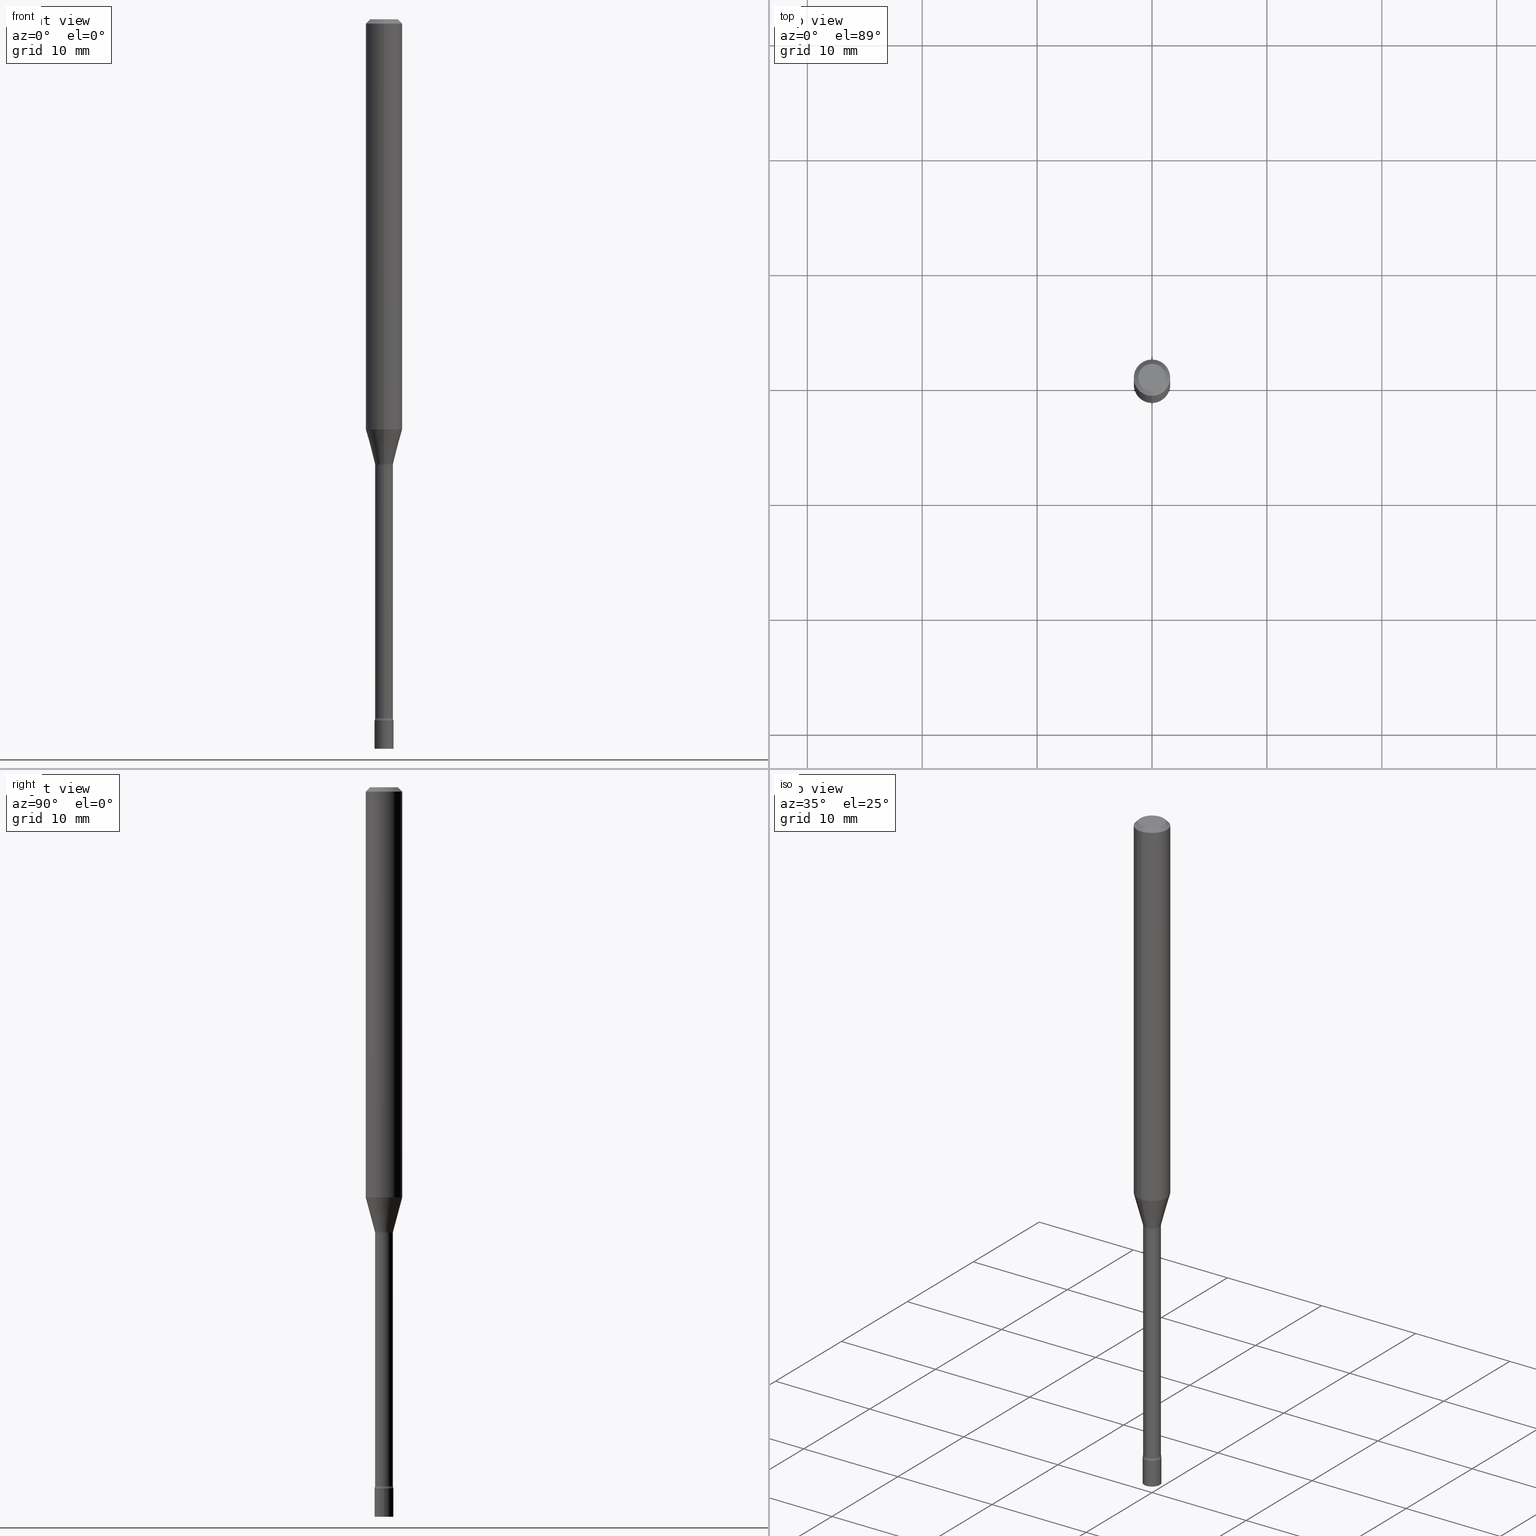
[diagram: canonical four-view strip — front | top / right | iso, engineering-drawing reading convention]
A machine part, canonical four-view strip (front | top / right | iso — engineering-drawing reading convention). The complete STEP part file that produces these views, byte-faithful:
ISO-10303-21;
HEADER;
FILE_DESCRIPTION (( 'STEP AP203' ),
    '1' );
FILE_NAME ('09694.STEP',
    '2024-03-09T00:54:56',
    ( '' ),
    ( '' ),
    'SwSTEP 2.0',
    'SolidWorks 2023',
    '' );
FILE_SCHEMA (( 'CONFIG_CONTROL_DESIGN' ));
ENDSEC;

DATA;
#1 = CYLINDRICAL_SURFACE ( 'NONE', #429, 0.03250000000000000111 ) ;
#2 = CLOSED_SHELL ( 'NONE', ( #404, #222, #432, #103, #30, #485, #6, #465, #80, #73, #48, #367, #166, #520 ) ) ;
#3 = AXIS2_PLACEMENT_3D ( 'NONE', #154, #260, #344 ) ;
#4 = ORIENTED_EDGE ( 'NONE', *, *, #396, .F. ) ;
#5 = VERTEX_POINT ( 'NONE', #299 ) ;
#6 = ADVANCED_FACE ( 'NONE', ( #345 ), #198, .T. ) ;
#7 = DATE_AND_TIME ( #376, #362 ) ;
#8 = ORIENTED_EDGE ( 'NONE', *, *, #357, .T. ) ;
#9 = AXIS2_PLACEMENT_3D ( 'NONE', #35, #69, #232 ) ;
#10 = CC_DESIGN_APPROVAL ( #44, ( #142 ) ) ;
#11 = ORIENTED_EDGE ( 'NONE', *, *, #280, .F. ) ;
#12 = CARTESIAN_POINT ( 'NONE',  ( 2.269462870248623692E-16, 0.03249999999999161199, -2.402000000000000135 ) ) ;
#13 = CARTESIAN_POINT ( 'NONE',  ( 3.236522161387629591E-16, 0.04554999999999466420, -1.526974787463811545 ) ) ;
#14 = ORIENTED_EDGE ( 'NONE', *, *, #170, .T. ) ;
#15 = DIRECTION ( 'NONE',  ( -6.982962677686265922E-15, -1.000000000000000000, 3.483106191921935554E-15 ) ) ;
#16 = AXIS2_PLACEMENT_3D ( 'NONE', #312, #365, #120 ) ;
#17 = VECTOR ( 'NONE', #223, 39.37007874015748143 ) ;
#18 = EDGE_LOOP ( 'NONE', ( #4, #123 ) ) ;
#19 = ORIENTED_EDGE ( 'NONE', *, *, #477, .F. ) ;
#20 = FACE_OUTER_BOUND ( 'NONE', #46, .T. ) ;
#21 = CC_DESIGN_PERSON_AND_ORGANIZATION_ASSIGNMENT ( #422, #29, ( #49 ) ) ;
#22 = DIRECTION ( 'NONE',  ( -6.982962677686265922E-15, -1.000000000000000000, 3.491490356034149509E-15 ) ) ;
#23 = CARTESIAN_POINT ( 'NONE',  ( 2.309263891220913384E-16, 0.03249999999999162587, -2.402000000000000135 ) ) ;
#24 = ADVANCED_FACE ( 'NONE', ( #380 ), #421, .T. ) ;
#25 = FACE_OUTER_BOUND ( 'NONE', #496, .T. ) ;
#26 = AXIS2_PLACEMENT_3D ( 'NONE', #426, #368, #325 ) ;
#27 = AXIS2_PLACEMENT_3D ( 'NONE', #265, #140, #15 ) ;
#28 = CARTESIAN_POINT ( 'NONE',  ( 0.000000000000000000, 0.000000000000000000, 0.000000000000000000 ) ) ;
#29 = PERSON_AND_ORGANIZATION_ROLE ( 'design_owner' ) ;
#30 = ADVANCED_FACE ( 'NONE', ( #462 ), #457, .T. ) ;
#31 = COORDINATED_UNIVERSAL_TIME_OFFSET ( 5, 0, .BEHIND. ) ;
#32 = VECTOR ( 'NONE', #205, 39.37007874015748143 ) ;
#33 = DIRECTION ( 'NONE',  ( -2.445462509514312655E-29, 3.491490356034149509E-15, 1.000000000000000000 ) ) ;
#34 = APPLICATION_CONTEXT ( 'configuration controlled 3d designs of mechanical parts and assemblies' ) ;
#35 = CARTESIAN_POINT ( 'NONE',  ( 5.874000947853379180E-29, -8.386559835194027809E-15, -2.402000000000000135 ) ) ;
#36 = PERSON_AND_ORGANIZATION_ROLE ( 'creator' ) ;
#37 = ORIENTED_EDGE ( 'NONE', *, *, #309, .F. ) ;
#38 = DIRECTION ( 'NONE',  ( -6.982962677686265922E-15, -1.000000000000000000, 0.000000000000000000 ) ) ;
#39 = CARTESIAN_POINT ( 'NONE',  ( 6.113672015462842613E-29, -8.728703347107864943E-15, -2.500000000000000000 ) ) ;
#40 = DATE_AND_TIME ( #121, #216 ) ;
#41 = VERTEX_POINT ( 'NONE', #261 ) ;
#42 = FACE_OUTER_BOUND ( 'NONE', #164, .T. ) ;
#43 = AXIS2_PLACEMENT_3D ( 'NONE', #110, #399, #271 ) ;
#44 = APPROVAL ( #235, 'UNSPECIFIED' ) ;
#45 = APPROVAL_STATUS ( 'not_yet_approved' ) ;
#46 = EDGE_LOOP ( 'NONE', ( #256, #244, #161, #446 ) ) ;
#47 = CARTESIAN_POINT ( 'NONE',  ( 5.855929933387993596E-29, -8.360715962634647749E-15, -2.394604224178627838 ) ) ;
#48 = ADVANCED_FACE ( 'NONE', ( #383 ), #231, .F. ) ;
#49 = PRODUCT ( '09694', '09694', '', ( #116 ) ) ;
#50 = VERTEX_POINT ( 'NONE', #497 ) ;
#51 = ORIENTED_EDGE ( 'NONE', *, *, #440, .T. ) ;
#52 = APPROVAL_ROLE ( '' ) ;
#53 = AXIS2_PLACEMENT_3D ( 'NONE', #246, #516, #486 ) ;
#54 = CC_DESIGN_APPROVAL ( #182, ( #149 ) ) ;
#55 = CARTESIAN_POINT ( 'NONE',  ( 2.207024792658474506E-16, 0.03106111260565866741, -1.523092501787273401 ) ) ;
#56 = EDGE_CURVE ( 'NONE', #410, #62, #390, .T. ) ;
#57 = VERTEX_POINT ( 'NONE', #505 ) ;
#58 = CARTESIAN_POINT ( 'NONE',  ( 3.724665611643138049E-29, -5.317862781338191581E-15, -1.523092501787273401 ) ) ;
#59 = DIRECTION ( 'NONE',  ( -1.000000000000000000, 6.982962677686265922E-15, -4.876176775795935793E-29 ) ) ;
#60 = EDGE_LOOP ( 'NONE', ( #489, #167, #201, #388 ) ) ;
#61 = LINE ( 'NONE', #358, #193 ) ;
#62 = VERTEX_POINT ( 'NONE', #350 ) ;
#63 = ORIENTED_EDGE ( 'NONE', *, *, #351, .F. ) ;
#64 = AXIS2_PLACEMENT_3D ( 'NONE', #12, #264, #106 ) ;
#65 = VECTOR ( 'NONE', #158, 39.37007874015748143 ) ;
#66 = CARTESIAN_POINT ( 'NONE',  ( 3.734159595716336205E-29, -5.331417744337191746E-15, -1.526974787463811323 ) ) ;
#67 = EDGE_CURVE ( 'NONE', #50, #62, #335, .T. ) ;
#68 = CARTESIAN_POINT ( 'NONE',  ( 3.668193764271476392E-31, -5.237235534051234815E-17, -0.01500000000000003067 ) ) ;
#69 = DIRECTION ( 'NONE',  ( -2.445462509514312655E-29, 3.491490356034149509E-15, 1.000000000000000000 ) ) ;
#70 = CARTESIAN_POINT ( 'NONE',  ( 0.000000000000000000, 0.000000000000000000, 0.000000000000000000 ) ) ;
#71 = VECTOR ( 'NONE', #519, 39.37007874015748143 ) ;
#72 = APPLICATION_PROTOCOL_DEFINITION ( 'international standard', 'config_control_design', 1994, #347 ) ;
#73 = ADVANCED_FACE ( 'NONE', ( #342 ), #386, .F. ) ;
#74 = PERSON_AND_ORGANIZATION ( #400, #395 ) ;
#75 = EDGE_LOOP ( 'NONE', ( #249, #8, #263, #175 ) ) ;
#76 = CLOSED_SHELL ( 'NONE', ( #243, #157, #500, #24 ) ) ;
#77 = AXIS2_PLACEMENT_3D ( 'NONE', #304, #112, #115 ) ;
#78 = CC_DESIGN_SECURITY_CLASSIFICATION ( #355, ( #149 ) ) ;
#79 = LINE ( 'NONE', #392, #474 ) ;
#80 = ADVANCED_FACE ( 'NONE', ( #141 ), #354, .T. ) ;
#81 = CARTESIAN_POINT ( 'NONE',  ( -3.180739499685720164E-16, -0.04555000000000533622, -1.526974787463811101 ) ) ;
#82 = CYLINDRICAL_SURFACE ( 'NONE', #185, 0.03055000000000002852 ) ;
#83 = ORIENTED_EDGE ( 'NONE', *, *, #280, .T. ) ;
#84 = ORIENTED_EDGE ( 'NONE', *, *, #451, .F. ) ;
#85 = DIRECTION ( 'NONE',  ( -6.982962677686265922E-15, -1.000000000000000000, 3.491490356034149509E-15 ) ) ;
#86 = EDGE_CURVE ( 'NONE', #408, #453, #303, .T. ) ;
#87 = CIRCLE ( 'NONE', #155, 0.06250000000000000000 ) ;
#88 = DATE_AND_TIME ( #494, #124 ) ;
#89 = ORIENTED_EDGE ( 'NONE', *, *, #197, .T. ) ;
#90 = EDGE_LOOP ( 'NONE', ( #443, #481, #63, #323 ) ) ;
#91 = ORIENTED_EDGE ( 'NONE', *, *, #145, .F. ) ;
#92 = ADVANCED_BREP_SHAPE_REPRESENTATION ( '09694', ( #314, #318, #105 ), #372 ) ;
#93 = DIRECTION ( 'NONE',  ( 1.000000000000000000, -7.105427357601001070E-15, 4.926315618970823189E-29 ) ) ;
#94 = ORIENTED_EDGE ( 'NONE', *, *, #298, .F. ) ;
#95 = AXIS2_PLACEMENT_3D ( 'NONE', #144, #268, #503 ) ;
#96 = TOROIDAL_SURFACE ( 'NONE', #343, 0.04555000000000008348, 0.01500000000000002720 ) ;
#97 = ORIENTED_EDGE ( 'NONE', *, *, #424, .F. ) ;
#98 = ORIENTED_EDGE ( 'NONE', *, *, #56, .T. ) ;
#99 = ORIENTED_EDGE ( 'NONE', *, *, #179, .F. ) ;
#100 = ORIENTED_EDGE ( 'NONE', *, *, #269, .T. ) ;
#101 = DIRECTION ( 'NONE',  ( -6.982962677686265922E-15, -1.000000000000000000, 3.491490356034149115E-15 ) ) ;
#102 = ORIENTED_EDGE ( 'NONE', *, *, #128, .T. ) ;
#103 = ADVANCED_FACE ( 'NONE', ( #20 ), #492, .T. ) ;
#104 = CARTESIAN_POINT ( 'NONE',  ( 3.734169210573929131E-29, -5.331403975313875023E-15, -1.526974787463811323 ) ) ;
#105 = AXIS2_PLACEMENT_3D ( 'NONE', #28, #111, #272 ) ;
#106 = DIRECTION ( 'NONE',  ( -6.982962677686265922E-15, -1.000000000000000000, 3.491490356034149509E-15 ) ) ;
#107 = CARTESIAN_POINT ( 'NONE',  ( 0.000000000000000000, 0.000000000000000000, 0.000000000000000000 ) ) ;
#108 =( NAMED_UNIT ( * ) SI_UNIT ( $, .STERADIAN. ) SOLID_ANGLE_UNIT ( ) );
#109 = EDGE_CURVE ( 'NONE', #375, #171, #148, .T. ) ;
#110 = CARTESIAN_POINT ( 'NONE',  ( 5.874016072456698366E-29, -8.386538175901236044E-15, -2.402000000000000135 ) ) ;
#111 = DIRECTION ( 'NONE',  ( 0.000000000000000000, 0.000000000000000000, 1.000000000000000000 ) ) ;
#112 = DIRECTION ( 'NONE',  ( -2.445462509514312655E-29, 3.491490356034149509E-15, 1.000000000000000000 ) ) ;
#113 = CIRCLE ( 'NONE', #16, 0.03106111260566398607 ) ;
#114 = AXIS2_PLACEMENT_3D ( 'NONE', #287, #407, #490 ) ;
#115 = DIRECTION ( 'NONE',  ( -6.982962677686265922E-15, -1.000000000000000000, 0.000000000000000000 ) ) ;
#116 = MECHANICAL_CONTEXT ( 'NONE', #347, 'mechanical' ) ;
#117 = SECURITY_CLASSIFICATION_LEVEL ( 'unclassified' ) ;
#118 = EDGE_CURVE ( 'NONE', #410, #331, #412, .T. ) ;
#119 = EDGE_CURVE ( 'NONE', #171, #224, #300, .T. ) ;
#120 = DIRECTION ( 'NONE',  ( -6.982962677686265922E-15, -1.000000000000000000, 0.000000000000000000 ) ) ;
#121 = CALENDAR_DATE ( 2024, 8, 3 ) ;
#122 = AXIS2_PLACEMENT_3D ( 'NONE', #452, #93, #257 ) ;
#123 = ORIENTED_EDGE ( 'NONE', *, *, #197, .F. ) ;
#124 = LOCAL_TIME ( 19, 54, 56.00000000000000000, #302 ) ;
#125 = DIRECTION ( 'NONE',  ( 1.000000000000000000, -6.982962677686287221E-15, 0.000000000000000000 ) ) ;
#126 = ORIENTED_EDGE ( 'NONE', *, *, #86, .F. ) ;
#127 = DIRECTION ( 'NONE',  ( -2.445462509514312655E-29, 3.491490356034149509E-15, 1.000000000000000000 ) ) ;
#128 = EDGE_CURVE ( 'NONE', #41, #57, #162, .T. ) ;
#129 = CARTESIAN_POINT ( 'NONE',  ( -4.364351673553916201E-16, -0.06250000000000000000, 2.182181472521343443E-16 ) ) ;
#130 = VERTEX_POINT ( 'NONE', #316 ) ;
#131 = DIRECTION ( 'NONE',  ( -2.445462509514312655E-29, 3.491490356034149509E-15, 1.000000000000000000 ) ) ;
#132 = ORIENTED_EDGE ( 'NONE', *, *, #67, .F. ) ;
#133 = CONICAL_SURFACE ( 'NONE', #423, 0.03106111260566398607, 0.2617993877991497409 ) ;
#134 = ORIENTED_EDGE ( 'NONE', *, *, #262, .F. ) ;
#135 = DIRECTION ( 'NONE',  ( 2.445462509514312655E-29, -3.491490356034149509E-15, -1.000000000000000000 ) ) ;
#136 = DIRECTION ( 'NONE',  ( -2.445462509514312655E-29, 3.491490356034149509E-15, 1.000000000000000000 ) ) ;
#137 = CARTESIAN_POINT ( 'NONE',  ( 3.724665611643138049E-29, -5.317862781338191581E-15, -1.523092501787273401 ) ) ;
#138 = CIRCLE ( 'NONE', #226, 0.03055000000000005975 ) ;
#139 = AXIS2_PLACEMENT_3D ( 'NONE', #359, #339, #349 ) ;
#140 = DIRECTION ( 'NONE',  ( -2.445462509514312655E-29, 3.491490356034149509E-15, 1.000000000000000000 ) ) ;
#141 = FACE_OUTER_BOUND ( 'NONE', #296, .T. ) ;
#142 = PRODUCT_DEFINITION ( 'UNKNOWN', '', #149, #293 ) ;
#143 = FACE_OUTER_BOUND ( 'NONE', #60, .T. ) ;
#144 = CARTESIAN_POINT ( 'NONE',  ( 3.316907271900976096E-16, 0.04749999999999999362, -1.803025332172702533E-16 ) ) ;
#145 = EDGE_CURVE ( 'NONE', #62, #50, #248, .T. ) ;
#146 = CARTESIAN_POINT ( 'NONE',  ( -3.180739499685514567E-16, -0.04555000000000844484, -2.394604224178627394 ) ) ;
#147 = DIRECTION ( 'NONE',  ( 2.438088387897960049E-29, -3.491481338843145188E-15, -1.000000000000000000 ) ) ;
#148 = CIRCLE ( 'NONE', #122, 0.01500000000000002720 ) ;
#149 = PRODUCT_DEFINITION_FORMATION_WITH_SPECIFIED_SOURCE ( 'ANY', '', #49, .NOT_KNOWN. ) ;
#150 = DIRECTION ( 'NONE',  ( -6.982962677686265922E-15, -1.000000000000000000, 3.491490356034149509E-15 ) ) ;
#151 = CARTESIAN_POINT ( 'NONE',  ( 3.734169210573929131E-29, -5.331403975313875023E-15, -1.526974787463811323 ) ) ;
#152 = EDGE_CURVE ( 'NONE', #288, #284, #472, .T. ) ;
#153 = CARTESIAN_POINT ( 'NONE',  ( 3.734159595716336205E-29, -5.331417744337191746E-15, -1.526974787463811323 ) ) ;
#154 = CARTESIAN_POINT ( 'NONE',  ( 5.874016072456698366E-29, -8.386538175901236044E-15, -2.402000000000000135 ) ) ;
#155 = AXIS2_PLACEMENT_3D ( 'NONE', #508, #425, #289 ) ;
#156 = CC_DESIGN_PERSON_AND_ORGANIZATION_ASSIGNMENT ( #74, #238, ( #355 ) ) ;
#157 = ADVANCED_FACE ( 'NONE', ( #353 ), #469, .T. ) ;
#158 = DIRECTION ( 'NONE',  ( 4.937700262164548042E-15, 0.7071067811865451302, -0.7071067811865499042 ) ) ;
#159 = DIRECTION ( 'NONE',  ( -2.445468806185136597E-29, 3.491481338843145583E-15, 1.000000000000000000 ) ) ;
#160 = LINE ( 'NONE', #245, #65 ) ;
#161 = ORIENTED_EDGE ( 'NONE', *, *, #152, .T. ) ;
#162 = LINE ( 'NONE', #512, #71 ) ;
#163 = AXIS2_PLACEMENT_3D ( 'NONE', #225, #337, #507 ) ;
#164 = EDGE_LOOP ( 'NONE', ( #11, #100, #188, #37 ) ) ;
#165 = FACE_OUTER_BOUND ( 'NONE', #409, .T. ) ;
#166 = ADVANCED_FACE ( 'NONE', ( #25 ), #320, .T. ) ;
#167 = ORIENTED_EDGE ( 'NONE', *, *, #196, .F. ) ;
#168 = CARTESIAN_POINT ( 'NONE',  ( -0.03250000000000000111, 2.309263891220325683E-16, -1.598653904332844407E-30 ) ) ;
#169 = ORIENTED_EDGE ( 'NONE', *, *, #357, .F. ) ;
#170 = EDGE_CURVE ( 'NONE', #5, #428, #282, .T. ) ;
#171 = VERTEX_POINT ( 'NONE', #23 ) ;
#172 = ORIENTED_EDGE ( 'NONE', *, *, #459, .T. ) ;
#173 = CARTESIAN_POINT ( 'NONE',  ( -3.773273898774340269E-16, -0.04749999999999999362, 1.369323093003258023E-16 ) ) ;
#174 = APPROVAL_DATE_TIME ( #7, #466 ) ;
#175 = ORIENTED_EDGE ( 'NONE', *, *, #269, .F. ) ;
#176 = PRODUCT_RELATED_PRODUCT_CATEGORY ( 'detail', '', ( #49 ) ) ;
#177 = CIRCLE ( 'NONE', #114, 0.03250000000000000111 ) ;
#178 = DIRECTION ( 'NONE',  ( 6.982962677686265922E-15, 1.000000000000000000, -3.483106191921935554E-15 ) ) ;
#179 = EDGE_CURVE ( 'NONE', #441, #57, #371, .T. ) ;
#180 = ORIENTED_EDGE ( 'NONE', *, *, #196, .T. ) ;
#181 = CARTESIAN_POINT ( 'NONE',  ( 3.668193764271476392E-31, -5.237235534051234815E-17, -0.01500000000000003067 ) ) ;
#182 = APPROVAL ( #45, 'UNSPECIFIED' ) ;
#183 = DIRECTION ( 'NONE',  ( -2.445462509514312655E-29, 3.491490356034149509E-15, 1.000000000000000000 ) ) ;
#184 = EDGE_LOOP ( 'NONE', ( #377, #336 ) ) ;
#185 = AXIS2_PLACEMENT_3D ( 'NONE', #70, #33, #150 ) ;
#186 = AXIS2_PLACEMENT_3D ( 'NONE', #104, #387, #22 ) ;
#187 = DIRECTION ( 'NONE',  ( -6.982962677686267499E-15, -1.000000000000000000, 0.000000000000000000 ) ) ;
#188 = ORIENTED_EDGE ( 'NONE', *, *, #451, .T. ) ;
#189 = DIRECTION ( 'NONE',  ( 7.105427357600997914E-15, 1.000000000000000000, 0.000000000000000000 ) ) ;
#190 = CALENDAR_DATE ( 2024, 8, 3 ) ;
#191 = FACE_OUTER_BOUND ( 'NONE', #214, .T. ) ;
#192 = VECTOR ( 'NONE', #239, 39.37007874015748143 ) ;
#193 = VECTOR ( 'NONE', #348, 39.37007874015748143 ) ;
#194 = DIRECTION ( 'NONE',  ( -6.982962677686265133E-15, -1.000000000000000000, 0.000000000000000000 ) ) ;
#195 =( NAMED_UNIT ( * ) PLANE_ANGLE_UNIT ( ) SI_UNIT ( $, .RADIAN. ) );
#196 = EDGE_CURVE ( 'NONE', #130, #375, #138, .T. ) ;
#197 = EDGE_CURVE ( 'NONE', #403, #41, #483, .T. ) ;
#198 = CONICAL_SURFACE ( 'NONE', #455, 0.03106111260566398607, 0.2617993877991497409 ) ;
#199 = CARTESIAN_POINT ( 'NONE',  ( 7.070683774541914860E-46, -1.009511456967021784E-31, -2.891348261129631711E-17 ) ) ;
#200 = CARTESIAN_POINT ( 'NONE',  ( -2.269462870247450261E-16, -0.03250000000000839717, -2.402000000000000135 ) ) ;
#201 = ORIENTED_EDGE ( 'NONE', *, *, #298, .T. ) ;
#202 = CARTESIAN_POINT ( 'NONE',  ( 3.724665611643138049E-29, -5.317862781338191581E-15, -1.523092501787273401 ) ) ;
#203 = DIRECTION ( 'NONE',  ( -6.982962677686265922E-15, -1.000000000000000000, 0.000000000000000000 ) ) ;
#204 = CALENDAR_DATE ( 2024, 8, 3 ) ;
#205 = DIRECTION ( 'NONE',  ( -2.445468806185136877E-29, 3.491481338843145188E-15, 1.000000000000000000 ) ) ;
#206 = AXIS2_PLACEMENT_3D ( 'NONE', #153, #394, #194 ) ;
#207 = ORIENTED_EDGE ( 'NONE', *, *, #119, .T. ) ;
#208 = CIRCLE ( 'NONE', #484, 0.03106111260566398607 ) ;
#209 = EDGE_LOOP ( 'NONE', ( #253, #83, #401, #84 ) ) ;
#210 = FACE_OUTER_BOUND ( 'NONE', #420, .T. ) ;
#211 = COORDINATED_UNIVERSAL_TIME_OFFSET ( 5, 0, .BEHIND. ) ;
#212 = EDGE_LOOP ( 'NONE', ( #219, #218 ) ) ;
#213 = SHAPE_DEFINITION_REPRESENTATION ( #215, #92 ) ;
#214 = EDGE_LOOP ( 'NONE', ( #180, #338, #132, #221 ) ) ;
#215 = PRODUCT_DEFINITION_SHAPE ( 'NONE', 'NONE',  #142 ) ;
#216 = LOCAL_TIME ( 19, 54, 56.00000000000000000, #328 ) ;
#217 = CIRCLE ( 'NONE', #3, 0.03250000000000000111 ) ;
#218 = ORIENTED_EDGE ( 'NONE', *, *, #179, .T. ) ;
#219 = ORIENTED_EDGE ( 'NONE', *, *, #351, .T. ) ;
#220 = DIRECTION ( 'NONE',  ( -6.982962677686265133E-15, -1.000000000000000000, 0.000000000000000000 ) ) ;
#221 = ORIENTED_EDGE ( 'NONE', *, *, #277, .F. ) ;
#222 = ADVANCED_FACE ( 'NONE', ( #191 ), #82, .T. ) ;
#223 = DIRECTION ( 'NONE',  ( -2.445462509514312655E-29, 3.491490356034149509E-15, 1.000000000000000000 ) ) ;
#224 = VERTEX_POINT ( 'NONE', #200 ) ;
#225 = CARTESIAN_POINT ( 'NONE',  ( 0.000000000000000000, 0.000000000000000000, 0.000000000000000000 ) ) ;
#226 = AXIS2_PLACEMENT_3D ( 'NONE', #427, #439, #203 ) ;
#227 = CIRCLE ( 'NONE', #514, 0.01500000000000002720 ) ;
#228 = DIRECTION ( 'NONE',  ( -6.982962677686265922E-15, -1.000000000000000000, 4.370956789862821150E-15 ) ) ;
#229 =( LENGTH_UNIT ( ) NAMED_UNIT ( * ) SI_UNIT ( $, .METRE. ) );
#230 = CARTESIAN_POINT ( 'NONE',  ( -0.03250000000000000111, -8.326694372382518911E-15, -2.500000000000000000 ) ) ;
#231 = PLANE ( 'NONE',  #64 ) ;
#232 = DIRECTION ( 'NONE',  ( -6.982962677686265922E-15, -1.000000000000000000, 0.000000000000000000 ) ) ;
#233 = AXIS2_PLACEMENT_3D ( 'NONE', #13, #419, #189 ) ;
#234 = CIRCLE ( 'NONE', #361, 0.01500000000000002720 ) ;
#235 = APPROVAL_STATUS ( 'not_yet_approved' ) ;
#236 = CARTESIAN_POINT ( 'NONE',  ( 4.440892098500972274E-16, 0.06249999999999995143, -0.01500000000000024751 ) ) ;
#237 = EDGE_CURVE ( 'NONE', #408, #410, #113, .T. ) ;
#238 = PERSON_AND_ORGANIZATION_ROLE ( 'classification_officer' ) ;
#239 = DIRECTION ( 'NONE',  ( 1.839019923739596765E-15, 0.2588190451025244587, 0.9659258262890673130 ) ) ;
#240 = LOCAL_TIME ( 19, 54, 56.00000000000000000, #31 ) ;
#241 = COORDINATED_UNIVERSAL_TIME_OFFSET ( 5, 0, .BEHIND. ) ;
#242 = CARTESIAN_POINT ( 'NONE',  ( 0.000000000000000000, 0.000000000000000000, 0.000000000000000000 ) ) ;
#243 = ADVANCED_FACE ( 'NONE', ( #467 ), #281, .T. ) ;
#244 = ORIENTED_EDGE ( 'NONE', *, *, #433, .T. ) ;
#245 = CARTESIAN_POINT ( 'NONE',  ( 4.364351673553919652E-16, 0.06249999999999995143, -0.01500000000000024751 ) ) ;
#246 = CARTESIAN_POINT ( 'NONE',  ( 7.070683774541914860E-46, -1.009511456967021784E-31, -2.891348261129631711E-17 ) ) ;
#247 = ORIENTED_EDGE ( 'NONE', *, *, #277, .T. ) ;
#248 = CIRCLE ( 'NONE', #206, 0.03055000000000000077 ) ;
#249 = ORIENTED_EDGE ( 'NONE', *, *, #118, .F. ) ;
#250 = AXIS2_PLACEMENT_3D ( 'NONE', #107, #270, #436 ) ;
#251 = DIRECTION ( 'NONE',  ( -6.982962677686263555E-15, -1.000000000000000000, 0.000000000000000000 ) ) ;
#252 = APPROVAL_STATUS ( 'not_yet_approved' ) ;
#253 = ORIENTED_EDGE ( 'NONE', *, *, #424, .T. ) ;
#254 = EDGE_LOOP ( 'NONE', ( #450, #308, #207, #94 ) ) ;
#255 = PERSON_AND_ORGANIZATION ( #400, #395 ) ;
#256 = ORIENTED_EDGE ( 'NONE', *, *, #440, .F. ) ;
#257 = DIRECTION ( 'NONE',  ( 7.105427357601001859E-15, 1.000000000000000000, 0.000000000000000000 ) ) ;
#258 = AXIS2_PLACEMENT_3D ( 'NONE', #68, #135, #295 ) ;
#259 = TOROIDAL_SURFACE ( 'NONE', #186, 0.04555000000000000021, 0.01500000000000002373 ) ;
#260 = DIRECTION ( 'NONE',  ( -2.445468806185136597E-29, 3.491481338843145583E-15, 1.000000000000000000 ) ) ;
#261 = CARTESIAN_POINT ( 'NONE',  ( 0.03250000000000000111, -8.955649634132668295E-15, -2.500000000000000000 ) ) ;
#262 = EDGE_CURVE ( 'NONE', #375, #62, #79, .T. ) ;
#263 = ORIENTED_EDGE ( 'NONE', *, *, #86, .T. ) ;
#264 = DIRECTION ( 'NONE',  ( -2.445462509514312375E-29, 3.491490356034149509E-15, 1.000000000000000000 ) ) ;
#265 = CARTESIAN_POINT ( 'NONE',  ( 3.668193764271476392E-31, -5.237235534051234815E-17, -0.01500000000000003067 ) ) ;
#266 = ORIENTED_EDGE ( 'NONE', *, *, #145, .T. ) ;
#267 = AXIS2_PLACEMENT_3D ( 'NONE', #47, #279, #324 ) ;
#268 = DIRECTION ( 'NONE',  ( 2.445462509514312375E-29, -3.491490356034149509E-15, -1.000000000000000000 ) ) ;
#269 = EDGE_CURVE ( 'NONE', #331, #453, #327, .T. ) ;
#270 = DIRECTION ( 'NONE',  ( -2.445468806185136597E-29, 3.491481338843145583E-15, 1.000000000000000000 ) ) ;
#271 = DIRECTION ( 'NONE',  ( 1.000000000000000000, -6.982962677686258033E-15, 0.000000000000000000 ) ) ;
#272 = DIRECTION ( 'NONE',  ( 1.000000000000000000, 0.000000000000000000, 0.000000000000000000 ) ) ;
#273 = DIRECTION ( 'NONE',  ( -2.445462509514312655E-29, 3.491490356034149509E-15, 1.000000000000000000 ) ) ;
#274 = CC_DESIGN_PERSON_AND_ORGANIZATION_ASSIGNMENT ( #366, #36, ( #142 ) ) ;
#275 = AXIS2_PLACEMENT_3D ( 'NONE', #509, #402, #389 ) ;
#276 = VECTOR ( 'NONE', #491, 39.37007874015748143 ) ;
#277 = EDGE_CURVE ( 'NONE', #130, #50, #61, .T. ) ;
#278 = DATE_AND_TIME ( #204, #311 ) ;
#279 = DIRECTION ( 'NONE',  ( -2.445462509514312655E-29, 3.491490356034149509E-15, 1.000000000000000000 ) ) ;
#280 = EDGE_CURVE ( 'NONE', #331, #284, #341, .T. ) ;
#281 = CYLINDRICAL_SURFACE ( 'NONE', #250, 0.03250000000000000111 ) ;
#282 = CIRCLE ( 'NONE', #53, 0.04749999999999999362 ) ;
#283 = PERSON_AND_ORGANIZATION_ROLE ( 'creator' ) ;
#284 = VERTEX_POINT ( 'NONE', #236 ) ;
#285 = CYLINDRICAL_SURFACE ( 'NONE', #391, 0.06250000000000000000 ) ;
#286 = ORIENTED_EDGE ( 'NONE', *, *, #237, .F. ) ;
#287 = CARTESIAN_POINT ( 'NONE',  ( 5.874000947853379180E-29, -8.386559835194027809E-15, -2.402000000000000135 ) ) ;
#288 = VERTEX_POINT ( 'NONE', #382 ) ;
#289 = DIRECTION ( 'NONE',  ( -6.982962677686265922E-15, -1.000000000000000000, 4.370956789862821150E-15 ) ) ;
#290 = VECTOR ( 'NONE', #447, 39.37007874015748143 ) ;
#291 = DIRECTION ( 'NONE',  ( -1.000000000000000000, 6.982962677686265922E-15, -4.883557194083112340E-29 ) ) ;
#292 = EDGE_LOOP ( 'NONE', ( #169, #98, #266, #19 ) ) ;
#293 = DESIGN_CONTEXT ( 'detailed design', #34, 'design' ) ;
#294 = ORIENTED_EDGE ( 'NONE', *, *, #170, .F. ) ;
#295 = DIRECTION ( 'NONE',  ( 6.982962677686265922E-15, 1.000000000000000000, -3.483106191921935554E-15 ) ) ;
#296 = EDGE_LOOP ( 'NONE', ( #305, #294, #172, #417 ) ) ;
#297 = DIRECTION ( 'NONE',  ( -2.445462509514312655E-29, 3.491490356034149509E-15, 1.000000000000000000 ) ) ;
#298 = EDGE_CURVE ( 'NONE', #130, #224, #227, .T. ) ;
#299 = CARTESIAN_POINT ( 'NONE',  ( 3.840629472727447874E-16, 0.04749999999999999362, -1.947592745229183872E-16 ) ) ;
#300 = CIRCLE ( 'NONE', #9, 0.03250000000000000111 ) ;
#301 = AXIS2_PLACEMENT_3D ( 'NONE', #151, #313, #476 ) ;
#302 = COORDINATED_UNIVERSAL_TIME_OFFSET ( 5, 0, .BEHIND. ) ;
#303 = LINE ( 'NONE', #306, #405 ) ;
#304 = CARTESIAN_POINT ( 'NONE',  ( 5.855914855353441094E-29, -8.360737555238315567E-15, -2.394604224178627838 ) ) ;
#305 = ORIENTED_EDGE ( 'NONE', *, *, #433, .F. ) ;
#306 = CARTESIAN_POINT ( 'NONE',  ( -2.168985900527247677E-16, -0.03106111260566930474, -1.523092501787273401 ) ) ;
#307 = ORIENTED_EDGE ( 'NONE', *, *, #118, .T. ) ;
#308 = ORIENTED_EDGE ( 'NONE', *, *, #109, .T. ) ;
#309 = EDGE_CURVE ( 'NONE', #284, #288, #317, .T. ) ;
#310 = AXIS2_PLACEMENT_3D ( 'NONE', #242, #356, #479 ) ;
#311 = LOCAL_TIME ( 19, 54, 56.00000000000000000, #241 ) ;
#312 = CARTESIAN_POINT ( 'NONE',  ( 3.724665611643138049E-29, -5.317862781338191581E-15, -1.523092501787273401 ) ) ;
#313 = DIRECTION ( 'NONE',  ( -2.445462509514312655E-29, 3.491490356034149509E-15, 1.000000000000000000 ) ) ;
#314 = MANIFOLD_SOLID_BREP ( 'Body-Move/Copy2[1]', #76 ) ;
#315 = DIMENSIONAL_EXPONENTS ( 1.000000000000000000, 0.000000000000000000, 0.000000000000000000, 0.000000000000000000, 0.000000000000000000, 0.000000000000000000, 0.000000000000000000 ) ;
#316 = CARTESIAN_POINT ( 'NONE',  ( -2.133295098032572737E-16, -0.03055000000000842111, -2.394604224178627838 ) ) ;
#317 = CIRCLE ( 'NONE', #27, 0.06250000000000000000 ) ;
#318 = MANIFOLD_SOLID_BREP ( 'Body-Move/Copy2[2]', #2 ) ;
#319 = LINE ( 'NONE', #168, #32 ) ;
#320 = CYLINDRICAL_SURFACE ( 'NONE', #310, 0.03055000000000002852 ) ;
#321 = CC_DESIGN_DATE_AND_TIME_ASSIGNMENT ( #88, #449, ( #355 ) ) ;
#322 = APPROVAL_ROLE ( '' ) ;
#323 = ORIENTED_EDGE ( 'NONE', *, *, #128, .F. ) ;
#324 = DIRECTION ( 'NONE',  ( -6.982962677686265922E-15, -1.000000000000000000, 3.491490356034149115E-15 ) ) ;
#325 = DIRECTION ( 'NONE',  ( -6.982962677686265922E-15, -1.000000000000000000, 3.483106191921935554E-15 ) ) ;
#326 = AXIS2_PLACEMENT_3D ( 'NONE', #458, #147, #59 ) ;
#327 = CIRCLE ( 'NONE', #511, 0.06250000000000000000 ) ;
#328 = COORDINATED_UNIVERSAL_TIME_OFFSET ( 5, 0, .BEHIND. ) ;
#329 = DIRECTION ( 'NONE',  ( 1.000000000000000000, -6.982962677686265922E-15, 4.876176775795935232E-29 ) ) ;
#330 = APPROVAL_DATE_TIME ( #40, #182 ) ;
#331 = VERTEX_POINT ( 'NONE', #473 ) ;
#332 = FACE_OUTER_BOUND ( 'NONE', #381, .T. ) ;
#333 = PERSON_AND_ORGANIZATION_ROLE ( 'design_supplier' ) ;
#334 = CARTESIAN_POINT ( 'NONE',  ( -4.287811248607203282E-16, -0.06250000000000005551, -0.01499999999999981209 ) ) ;
#335 = CIRCLE ( 'NONE', #444, 0.03055000000000000077 ) ;
#336 = ORIENTED_EDGE ( 'NONE', *, *, #119, .F. ) ;
#337 = DIRECTION ( 'NONE',  ( -2.445462509514312655E-29, 3.491490356034149509E-15, 1.000000000000000000 ) ) ;
#338 = ORIENTED_EDGE ( 'NONE', *, *, #262, .T. ) ;
#339 = DIRECTION ( 'NONE',  ( -2.445468806185136597E-29, 3.491481338843145583E-15, 1.000000000000000000 ) ) ;
#340 = DIRECTION ( 'NONE',  ( 2.445462509514312655E-29, -3.491490356034149509E-15, -1.000000000000000000 ) ) ;
#341 = LINE ( 'NONE', #506, #17 ) ;
#342 = FACE_OUTER_BOUND ( 'NONE', #415, .T. ) ;
#343 = AXIS2_PLACEMENT_3D ( 'NONE', #460, #273, #101 ) ;
#344 = DIRECTION ( 'NONE',  ( 1.000000000000000000, -6.982962677686258033E-15, 0.000000000000000000 ) ) ;
#345 = FACE_OUTER_BOUND ( 'NONE', #75, .T. ) ;
#346 = CC_DESIGN_PERSON_AND_ORGANIZATION_ASSIGNMENT ( #406, #333, ( #149 ) ) ;
#347 = APPLICATION_CONTEXT ( 'configuration controlled 3d designs of mechanical parts and assemblies' ) ;
#348 = DIRECTION ( 'NONE',  ( -2.445462509514312655E-29, 3.491490356034149509E-15, 1.000000000000000000 ) ) ;
#349 = DIRECTION ( 'NONE',  ( 1.000000000000000000, -6.982962677686287221E-15, 0.000000000000000000 ) ) ;
#350 = CARTESIAN_POINT ( 'NONE',  ( 2.170708057747693824E-16, 0.03054999999999466823, -1.526974787463811323 ) ) ;
#351 = EDGE_CURVE ( 'NONE', #57, #441, #217, .T. ) ;
#352 = CARTESIAN_POINT ( 'NONE',  ( -2.168985900527247677E-16, -0.03106111260566930474, -1.523092501787273401 ) ) ;
#353 = FACE_OUTER_BOUND ( 'NONE', #212, .T. ) ;
#354 = CONICAL_SURFACE ( 'NONE', #435, 0.06250000000000000000, 0.7853981633974483900 ) ;
#355 = SECURITY_CLASSIFICATION ( '', '', #117 ) ;
#356 = DIRECTION ( 'NONE',  ( -2.445462509514312655E-29, 3.491490356034149509E-15, 1.000000000000000000 ) ) ;
#357 = EDGE_CURVE ( 'NONE', #410, #408, #208, .T. ) ;
#358 = CARTESIAN_POINT ( 'NONE',  ( -2.133295098033156247E-16, -0.03055000000000002852, 1.066650303768433640E-16 ) ) ;
#359 = CARTESIAN_POINT ( 'NONE',  ( 6.113672015462842613E-29, -8.728703347107864943E-15, -2.500000000000000000 ) ) ;
#360 = DATE_AND_TIME ( #190, #240 ) ;
#361 = AXIS2_PLACEMENT_3D ( 'NONE', #81, #291, #251 ) ;
#362 = LOCAL_TIME ( 19, 54, 56.00000000000000000, #211 ) ;
#363 = CARTESIAN_POINT ( 'NONE',  ( -0.03250000000000000111, -8.326694372382518911E-15, -2.402000000000000135 ) ) ;
#364 = CC_DESIGN_PERSON_AND_ORGANIZATION_ASSIGNMENT ( #488, #283, ( #149 ) ) ;
#365 = DIRECTION ( 'NONE',  ( -2.445462509514312655E-29, 3.491490356034149509E-15, 1.000000000000000000 ) ) ;
#366 = PERSON_AND_ORGANIZATION ( #400, #395 ) ;
#367 = ADVANCED_FACE ( 'NONE', ( #143 ), #96, .F. ) ;
#368 = DIRECTION ( 'NONE',  ( -2.445462509514312655E-29, 3.491490356034149509E-15, 1.000000000000000000 ) ) ;
#369 = ORIENTED_EDGE ( 'NONE', *, *, #477, .T. ) ;
#370 = FACE_OUTER_BOUND ( 'NONE', #254, .T. ) ;
#371 = CIRCLE ( 'NONE', #43, 0.03250000000000000111 ) ;
#372 =( GEOMETRIC_REPRESENTATION_CONTEXT ( 3 ) GLOBAL_UNCERTAINTY_ASSIGNED_CONTEXT ( ( #498 ) ) GLOBAL_UNIT_ASSIGNED_CONTEXT ( ( #463, #195, #108 ) ) REPRESENTATION_CONTEXT ( 'NONE', 'WORKASPACE' ) );
#373 = DATE_TIME_ROLE ( 'creation_date' ) ;
#374 = ORIENTED_EDGE ( 'NONE', *, *, #56, .F. ) ;
#375 = VERTEX_POINT ( 'NONE', #470 ) ;
#376 = CALENDAR_DATE ( 2024, 8, 3 ) ;
#377 = ORIENTED_EDGE ( 'NONE', *, *, #518, .F. ) ;
#378 = DIRECTION ( 'NONE',  ( -6.982962677686265922E-15, -1.000000000000000000, 0.000000000000000000 ) ) ;
#379 = ORIENTED_EDGE ( 'NONE', *, *, #237, .T. ) ;
#380 = FACE_OUTER_BOUND ( 'NONE', #18, .T. ) ;
#381 = EDGE_LOOP ( 'NONE', ( #442, #89, #102, #99 ) ) ;
#382 = CARTESIAN_POINT ( 'NONE',  ( -4.364351673553912750E-16, -0.06250000000000005551, -0.01499999999999981209 ) ) ;
#383 = FACE_OUTER_BOUND ( 'NONE', #184, .T. ) ;
#384 = CIRCLE ( 'NONE', #456, 0.04749999999999999362 ) ;
#385 = EDGE_CURVE ( 'NONE', #375, #130, #445, .T. ) ;
#386 = PLANE ( 'NONE',  #95 ) ;
#387 = DIRECTION ( 'NONE',  ( -2.445462509514312655E-29, 3.491490356034149509E-15, 1.000000000000000000 ) ) ;
#388 = ORIENTED_EDGE ( 'NONE', *, *, #518, .T. ) ;
#389 = DIRECTION ( 'NONE',  ( 1.000000000000000000, -6.982962677686265922E-15, 4.876176775795935793E-29 ) ) ;
#390 = CIRCLE ( 'NONE', #233, 0.01500000000000002720 ) ;
#391 = AXIS2_PLACEMENT_3D ( 'NONE', #438, #127, #85 ) ;
#392 = CARTESIAN_POINT ( 'NONE',  ( 2.170708057747107848E-16, 0.03055000000000002852, -1.066650303768433640E-16 ) ) ;
#393 = APPROVAL_ROLE ( '' ) ;
#394 = DIRECTION ( 'NONE',  ( -2.445462509514312655E-29, 3.491490356034149509E-15, 1.000000000000000000 ) ) ;
#395 = ORGANIZATION ( 'UNSPECIFIED', 'UNSPECIFIED', '' ) ;
#396 = EDGE_CURVE ( 'NONE', #41, #403, #510, .T. ) ;
#397 = PERSON_AND_ORGANIZATION ( #400, #395 ) ;
#398 = LINE ( 'NONE', #129, #290 ) ;
#399 = DIRECTION ( 'NONE',  ( -2.445468806185136597E-29, 3.491481338843145583E-15, 1.000000000000000000 ) ) ;
#400 = PERSON ( 'UNSPECIFIED', 'UNSPECIFIED', 'UNSPECIFIED', ('UNSPECIFIED'), ('UNSPECIFIED'), ('UNSPECIFIED') ) ;
#401 = ORIENTED_EDGE ( 'NONE', *, *, #152, .F. ) ;
#402 = DIRECTION ( 'NONE',  ( -2.438088387897960049E-29, 3.491481338843145188E-15, 1.000000000000000000 ) ) ;
#403 = VERTEX_POINT ( 'NONE', #230 ) ;
#404 = ADVANCED_FACE ( 'NONE', ( #480 ), #259, .F. ) ;
#405 = VECTOR ( 'NONE', #461, 39.37007874015748854 ) ;
#406 = PERSON_AND_ORGANIZATION ( #400, #395 ) ;
#407 = DIRECTION ( 'NONE',  ( -2.445462509514312655E-29, 3.491490356034149509E-15, 1.000000000000000000 ) ) ;
#408 = VERTEX_POINT ( 'NONE', #352 ) ;
#409 = EDGE_LOOP ( 'NONE', ( #379, #307, #97, #126 ) ) ;
#410 = VERTEX_POINT ( 'NONE', #430 ) ;
#411 = APPROVAL_PERSON_ORGANIZATION ( #255, #466, #52 ) ;
#412 = LINE ( 'NONE', #55, #192 ) ;
#413 = ORIENTED_EDGE ( 'NONE', *, *, #67, .T. ) ;
#414 = DIRECTION ( 'NONE',  ( -6.982962677686265922E-15, -1.000000000000000000, 0.000000000000000000 ) ) ;
#415 = EDGE_LOOP ( 'NONE', ( #14, #51 ) ) ;
#416 = ORIENTED_EDGE ( 'NONE', *, *, #385, .T. ) ;
#417 = ORIENTED_EDGE ( 'NONE', *, *, #309, .T. ) ;
#418 = CARTESIAN_POINT ( 'NONE',  ( 3.437735765853609990E-29, -4.908200893030823515E-15, -1.405760976698174902 ) ) ;
#419 = DIRECTION ( 'NONE',  ( 1.000000000000000000, -7.105427357601001070E-15, 4.926315618970823189E-29 ) ) ;
#420 = EDGE_LOOP ( 'NONE', ( #374, #286, #369, #413 ) ) ;
#421 = PLANE ( 'NONE',  #326 ) ;
#422 = PERSON_AND_ORGANIZATION ( #400, #395 ) ;
#423 = AXIS2_PLACEMENT_3D ( 'NONE', #202, #487, #38 ) ;
#424 = EDGE_CURVE ( 'NONE', #453, #331, #87, .T. ) ;
#425 = DIRECTION ( 'NONE',  ( -2.445462509514312655E-29, 3.491490356034149509E-15, 1.000000000000000000 ) ) ;
#426 = CARTESIAN_POINT ( 'NONE',  ( 3.668193764271476392E-31, -5.237235534051234815E-17, -0.01500000000000003067 ) ) ;
#427 = CARTESIAN_POINT ( 'NONE',  ( 5.855914855353441094E-29, -8.360737555238315567E-15, -2.394604224178627838 ) ) ;
#428 = VERTEX_POINT ( 'NONE', #173 ) ;
#429 = AXIS2_PLACEMENT_3D ( 'NONE', #478, #434, #329 ) ;
#430 = CARTESIAN_POINT ( 'NONE',  ( 3.323958445579722897E-16, 0.03106111260565866394, -1.523092501787273401 ) ) ;
#431 = PERSON_AND_ORGANIZATION ( #400, #395 ) ;
#432 = ADVANCED_FACE ( 'NONE', ( #370 ), #502, .F. ) ;
#433 = EDGE_CURVE ( 'NONE', #428, #288, #517, .T. ) ;
#434 = DIRECTION ( 'NONE',  ( -2.445468806185136597E-29, 3.491481338843145583E-15, 1.000000000000000000 ) ) ;
#435 = AXIS2_PLACEMENT_3D ( 'NONE', #181, #340, #178 ) ;
#436 = DIRECTION ( 'NONE',  ( 1.000000000000000000, -6.982962677686265922E-15, 4.876176775795935232E-29 ) ) ;
#437 = APPROVAL_PERSON_ORGANIZATION ( #397, #182, #322 ) ;
#438 = CARTESIAN_POINT ( 'NONE',  ( 0.000000000000000000, 0.000000000000000000, 0.000000000000000000 ) ) ;
#439 = DIRECTION ( 'NONE',  ( -2.445462509514312655E-29, 3.491490356034149509E-15, 1.000000000000000000 ) ) ;
#440 = EDGE_CURVE ( 'NONE', #428, #5, #384, .T. ) ;
#441 = VERTEX_POINT ( 'NONE', #363 ) ;
#442 = ORIENTED_EDGE ( 'NONE', *, *, #495, .F. ) ;
#443 = ORIENTED_EDGE ( 'NONE', *, *, #396, .T. ) ;
#444 = AXIS2_PLACEMENT_3D ( 'NONE', #66, #183, #220 ) ;
#445 = CIRCLE ( 'NONE', #77, 0.03055000000000005975 ) ;
#446 = ORIENTED_EDGE ( 'NONE', *, *, #459, .F. ) ;
#447 = DIRECTION ( 'NONE',  ( -2.445462509514312655E-29, 3.491490356034149509E-15, 1.000000000000000000 ) ) ;
#448 = CC_DESIGN_DATE_AND_TIME_ASSIGNMENT ( #278, #373, ( #142 ) ) ;
#449 = DATE_TIME_ROLE ( 'classification_date' ) ;
#450 = ORIENTED_EDGE ( 'NONE', *, *, #385, .F. ) ;
#451 = EDGE_CURVE ( 'NONE', #453, #288, #398, .T. ) ;
#452 = CARTESIAN_POINT ( 'NONE',  ( 3.236522161387847514E-16, 0.04554999999999172905, -2.394604224178627838 ) ) ;
#453 = VERTEX_POINT ( 'NONE', #515 ) ;
#454 = DIRECTION ( 'NONE',  ( -1.000000000000000000, 6.982962677686265922E-15, -4.883557194083112340E-29 ) ) ;
#455 = AXIS2_PLACEMENT_3D ( 'NONE', #137, #499, #378 ) ;
#456 = AXIS2_PLACEMENT_3D ( 'NONE', #199, #131, #482 ) ;
#457 = CYLINDRICAL_SURFACE ( 'NONE', #163, 0.06250000000000000000 ) ;
#458 = CARTESIAN_POINT ( 'NONE',  ( 2.269462870248647851E-16, 0.03249999999999127198, -2.500000000000000000 ) ) ;
#459 = EDGE_CURVE ( 'NONE', #5, #284, #160, .T. ) ;
#460 = CARTESIAN_POINT ( 'NONE',  ( 5.855929933387993596E-29, -8.360715962634647749E-15, -2.394604224178627838 ) ) ;
#461 = DIRECTION ( 'NONE',  ( -1.807323732225326589E-15, -0.2588190451025176864, 0.9659258262890690894 ) ) ;
#462 = FACE_OUTER_BOUND ( 'NONE', #209, .T. ) ;
#463 =( CONVERSION_BASED_UNIT ( 'INCH', #468 ) LENGTH_UNIT ( ) NAMED_UNIT ( #315 ) );
#464 = APPROVAL_PERSON_ORGANIZATION ( #431, #44, #393 ) ;
#465 = ADVANCED_FACE ( 'NONE', ( #42 ), #285, .T. ) ;
#466 = APPROVAL ( #252, 'UNSPECIFIED' ) ;
#467 = FACE_OUTER_BOUND ( 'NONE', #90, .T. ) ;
#468 = LENGTH_MEASURE_WITH_UNIT ( LENGTH_MEASURE( 0.02539999999999999897 ), #229 );
#469 = PLANE ( 'NONE',  #275 ) ;
#470 = CARTESIAN_POINT ( 'NONE',  ( 2.239985974484304837E-16, 0.03054999999999169838, -2.394604224178627838 ) ) ;
#471 = APPLICATION_PROTOCOL_DEFINITION ( 'international standard', 'config_control_design', 1994, #34 ) ;
#472 = CIRCLE ( 'NONE', #26, 0.06250000000000000000 ) ;
#473 = CARTESIAN_POINT ( 'NONE',  ( 4.440892098500967344E-16, 0.06249999999999506645, -1.405760976698175124 ) ) ;
#474 = VECTOR ( 'NONE', #136, 39.37007874015748143 ) ;
#475 = CC_DESIGN_APPROVAL ( #466, ( #355 ) ) ;
#476 = DIRECTION ( 'NONE',  ( -6.982962677686265922E-15, -1.000000000000000000, 3.491490356034149509E-15 ) ) ;
#477 = EDGE_CURVE ( 'NONE', #408, #50, #234, .T. ) ;
#478 = CARTESIAN_POINT ( 'NONE',  ( 0.000000000000000000, 0.000000000000000000, 0.000000000000000000 ) ) ;
#479 = DIRECTION ( 'NONE',  ( -6.982962677686265922E-15, -1.000000000000000000, 3.491490356034149509E-15 ) ) ;
#480 = FACE_OUTER_BOUND ( 'NONE', #292, .T. ) ;
#481 = ORIENTED_EDGE ( 'NONE', *, *, #495, .T. ) ;
#482 = DIRECTION ( 'NONE',  ( -6.982962677686266711E-15, -1.000000000000000000, 3.491490356034149904E-15 ) ) ;
#483 = CIRCLE ( 'NONE', #501, 0.03250000000000000111 ) ;
#484 = AXIS2_PLACEMENT_3D ( 'NONE', #58, #504, #414 ) ;
#485 = ADVANCED_FACE ( 'NONE', ( #165 ), #133, .T. ) ;
#486 = DIRECTION ( 'NONE',  ( -6.982962677686266711E-15, -1.000000000000000000, 3.491490356034149904E-15 ) ) ;
#487 = DIRECTION ( 'NONE',  ( -2.445462509514312655E-29, 3.491490356034149509E-15, 1.000000000000000000 ) ) ;
#488 = PERSON_AND_ORGANIZATION ( #400, #395 ) ;
#489 = ORIENTED_EDGE ( 'NONE', *, *, #109, .F. ) ;
#490 = DIRECTION ( 'NONE',  ( -6.982962677686265922E-15, -1.000000000000000000, 0.000000000000000000 ) ) ;
#491 = DIRECTION ( 'NONE',  ( -4.851104656540964275E-15, -0.7071067811865500152, -0.7071067811865450192 ) ) ;
#492 = CONICAL_SURFACE ( 'NONE', #258, 0.06250000000000000000, 0.7853981633974483900 ) ;
#493 = TOROIDAL_SURFACE ( 'NONE', #301, 0.04555000000000000021, 0.01500000000000002373 ) ;
#494 = CALENDAR_DATE ( 2024, 8, 3 ) ;
#495 = EDGE_CURVE ( 'NONE', #403, #441, #319, .T. ) ;
#496 = EDGE_LOOP ( 'NONE', ( #134, #416, #247, #91 ) ) ;
#497 = CARTESIAN_POINT ( 'NONE',  ( -2.133295098032780799E-16, -0.03055000000000532984, -1.526974787463811323 ) ) ;
#498 = UNCERTAINTY_MEASURE_WITH_UNIT (LENGTH_MEASURE( 1.000000000000000082E-05 ), #463, 'distance_accuracy_value', 'NONE');
#499 = DIRECTION ( 'NONE',  ( -2.445462509514312655E-29, 3.491490356034149509E-15, 1.000000000000000000 ) ) ;
#500 = ADVANCED_FACE ( 'NONE', ( #332 ), #1, .T. ) ;
#501 = AXIS2_PLACEMENT_3D ( 'NONE', #39, #159, #125 ) ;
#502 = TOROIDAL_SURFACE ( 'NONE', #267, 0.04555000000000008348, 0.01500000000000002720 ) ;
#503 = DIRECTION ( 'NONE',  ( 6.982962677686265922E-15, 1.000000000000000000, -3.491490356034149509E-15 ) ) ;
#504 = DIRECTION ( 'NONE',  ( -2.445462509514312655E-29, 3.491490356034149509E-15, 1.000000000000000000 ) ) ;
#505 = CARTESIAN_POINT ( 'NONE',  ( 0.03250000000000000111, -8.613484462926039396E-15, -2.402000000000000135 ) ) ;
#506 = CARTESIAN_POINT ( 'NONE',  ( 4.440892098500625669E-16, 0.06250000000000000000, -2.182181472521343443E-16 ) ) ;
#507 = DIRECTION ( 'NONE',  ( -6.982962677686265922E-15, -1.000000000000000000, 3.491490356034149509E-15 ) ) ;
#508 = CARTESIAN_POINT ( 'NONE',  ( 3.437735765853609990E-29, -4.908200893030823515E-15, -1.405760976698174902 ) ) ;
#509 = CARTESIAN_POINT ( 'NONE',  ( 5.874016072456698366E-29, -8.386538175901236044E-15, -2.402000000000000135 ) ) ;
#510 = CIRCLE ( 'NONE', #139, 0.03250000000000000111 ) ;
#511 = AXIS2_PLACEMENT_3D ( 'NONE', #418, #297, #228 ) ;
#512 = CARTESIAN_POINT ( 'NONE',  ( 0.03250000000000000111, -2.269462870248036484E-16, 1.584757452133678993E-30 ) ) ;
#513 = APPROVAL_DATE_TIME ( #360, #44 ) ;
#514 = AXIS2_PLACEMENT_3D ( 'NONE', #146, #454, #187 ) ;
#515 = CARTESIAN_POINT ( 'NONE',  ( -4.364351673553574033E-16, -0.06250000000000494049, -1.405760976698174458 ) ) ;
#516 = DIRECTION ( 'NONE',  ( -2.445462509514312655E-29, 3.491490356034149509E-15, 1.000000000000000000 ) ) ;
#517 = LINE ( 'NONE', #334, #276 ) ;
#518 = EDGE_CURVE ( 'NONE', #224, #171, #177, .T. ) ;
#519 = DIRECTION ( 'NONE',  ( -2.445468806185136877E-29, 3.491481338843145188E-15, 1.000000000000000000 ) ) ;
#520 = ADVANCED_FACE ( 'NONE', ( #210 ), #493, .F. ) ;
ENDSEC;
END-ISO-10303-21;
